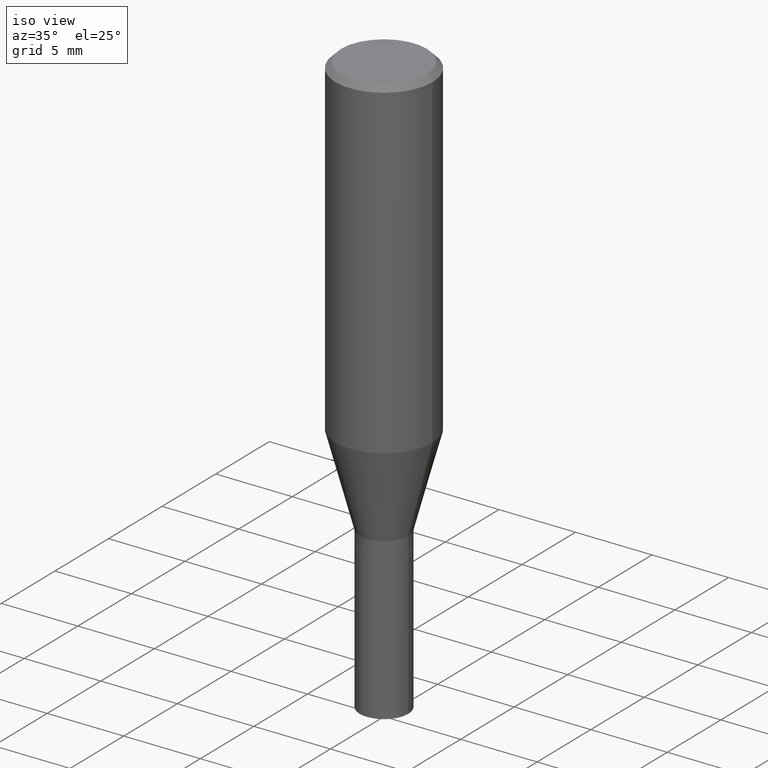
[diagram: clean part render]
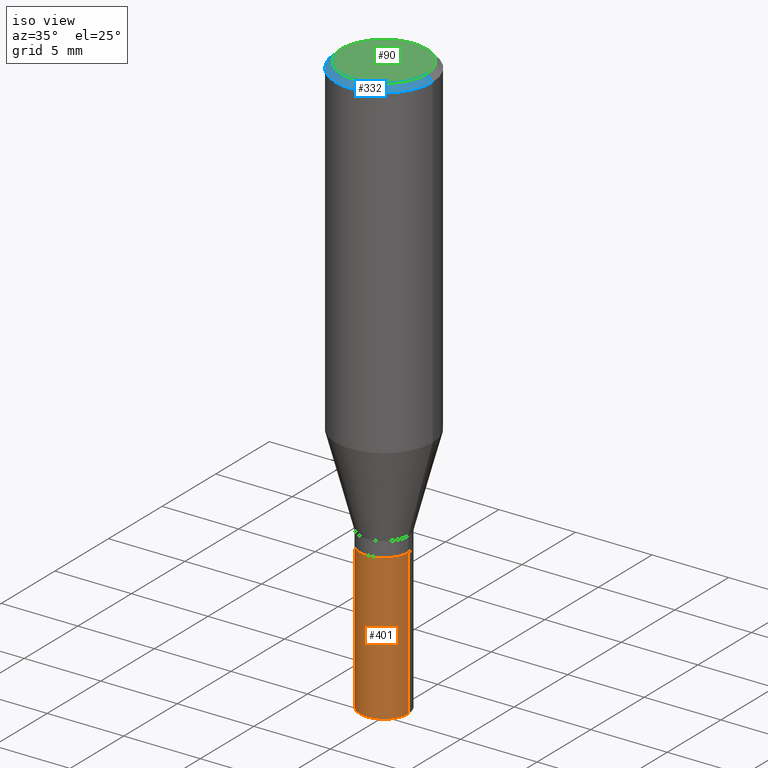
[diagram: same view with three faces highlighted in distinct colors, each labeled with its STEP entity id]
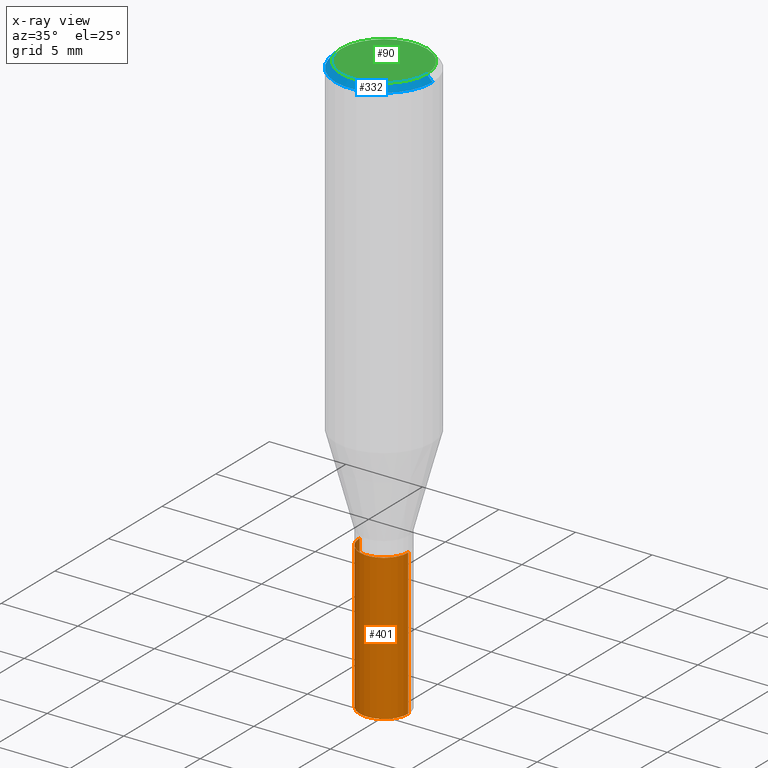
[diagram: x-ray of the same camera — body ghosted, the three highlighted faces saturated]
A machine part, iso view with three faces highlighted in distinct colors.
The next image is the same camera in x-ray (body ghosted, the three faces saturated) — at least one of them is partly hidden behind the body in this view.
Their STEP definitions:

[orange] entity #401 — the highlighted cylindrical surface (edge-blend (fillet) strip) has radius 1.5875 mm, axis along (-0, 0, 1).
#21 = EDGE_CURVE ( 'NONE', #188, #260, #208, .T. ) ;
#22 = VECTOR ( 'NONE', #247, 39.37007874015748143 ) ;
#31 = ORIENTED_EDGE ( 'NONE', *, *, #227, .T. ) ;
#33 = AXIS2_PLACEMENT_3D ( 'NONE', #87, #50, #454 ) ;
#34 = EDGE_LOOP ( 'NONE', ( #191, #408, #31, #178 ) ) ;
#48 = LINE ( 'NONE', #89, #73 ) ;
#50 = DIRECTION ( 'NONE',  ( -2.445468806185136597E-29, 3.491481338843145583E-15, 1.000000000000000000 ) ) ;
#55 = LINE ( 'NONE', #291, #22 ) ;
#73 = VECTOR ( 'NONE', #238, 39.37007874015748143 ) ;
#75 = CARTESIAN_POINT ( 'NONE',  ( 0.06250000000000000000, -4.364351673553930894E-15, -1.125000000000000222 ) ) ;
#87 = CARTESIAN_POINT ( 'NONE',  ( 2.751152406958279232E-29, -3.927916506198539224E-15, -1.125000000000000222 ) ) ;
#89 = CARTESIAN_POINT ( 'NONE',  ( 0.06250000000000000000, -4.364351673553916694E-16, 3.047610484872459871E-30 ) ) ;
#98 = CARTESIAN_POINT ( 'NONE',  ( 3.668203209277704895E-29, -5.237222008264718177E-15, -1.500000000000000222 ) ) ;
#105 = DIRECTION ( 'NONE',  ( -2.445468806185136597E-29, 3.491481338843145583E-15, 1.000000000000000000 ) ) ;
#121 = CIRCLE ( 'NONE', #33, 0.06250000000000000000 ) ;
#156 = FACE_OUTER_BOUND ( 'NONE', #34, .T. ) ;
#160 = CARTESIAN_POINT ( 'NONE',  ( 0.000000000000000000, 0.000000000000000000, 0.000000000000000000 ) ) ;
#162 = AXIS2_PLACEMENT_3D ( 'NONE', #160, #399, #460 ) ;
#178 = ORIENTED_EDGE ( 'NONE', *, *, #244, .F. ) ;
#186 = DIRECTION ( 'NONE',  ( 1.000000000000000000, -6.982962677686262766E-15, 0.000000000000000000 ) ) ;
#188 = VERTEX_POINT ( 'NONE', #195 ) ;
#191 = ORIENTED_EDGE ( 'NONE', *, *, #432, .F. ) ;
#195 = CARTESIAN_POINT ( 'NONE',  ( -0.06250000000000000000, -4.138480047381566479E-15, -1.500000000000000222 ) ) ;
#208 = CIRCLE ( 'NONE', #289, 0.06250000000000000000 ) ;
#212 = VERTEX_POINT ( 'NONE', #459 ) ;
#227 = EDGE_CURVE ( 'NONE', #260, #463, #48, .T. ) ;
#238 = DIRECTION ( 'NONE',  ( -2.445468806185136877E-29, 3.491481338843145188E-15, 1.000000000000000000 ) ) ;
#244 = EDGE_CURVE ( 'NONE', #212, #463, #121, .T. ) ;
#247 = DIRECTION ( 'NONE',  ( -2.445468806185136877E-29, 3.491481338843145188E-15, 1.000000000000000000 ) ) ;
#260 = VERTEX_POINT ( 'NONE', #393 ) ;
#281 = CYLINDRICAL_SURFACE ( 'NONE', #162, 0.06250000000000000000 ) ;
#289 = AXIS2_PLACEMENT_3D ( 'NONE', #98, #105, #186 ) ;
#291 = CARTESIAN_POINT ( 'NONE',  ( -0.06250000000000000000, 4.440892098500626162E-16, -3.074334431409316114E-30 ) ) ;
#393 = CARTESIAN_POINT ( 'NONE',  ( 0.06250000000000000000, -5.673657175620109846E-15, -1.500000000000000222 ) ) ;
#399 = DIRECTION ( 'NONE',  ( -2.445468806185136597E-29, 3.491481338843145583E-15, 1.000000000000000000 ) ) ;
#401 = ADVANCED_FACE ( 'NONE', ( #156 ), #281, .T. ) ;
#408 = ORIENTED_EDGE ( 'NONE', *, *, #21, .T. ) ;
#432 = EDGE_CURVE ( 'NONE', #188, #212, #55, .T. ) ;
#454 = DIRECTION ( 'NONE',  ( 1.000000000000000000, -6.982962677686262766E-15, 0.000000000000000000 ) ) ;
#459 = CARTESIAN_POINT ( 'NONE',  ( -0.06250000000000000000, -4.138480047381566479E-15, -1.125000000000000222 ) ) ;
#460 = DIRECTION ( 'NONE',  ( 1.000000000000000000, -6.982962677686266711E-15, 4.876176775795935793E-29 ) ) ;
#463 = VERTEX_POINT ( 'NONE', #75 ) ;

[blue] entity #332 — the highlighted conical surface has half-angle 45 deg.
#5 = ORIENTED_EDGE ( 'NONE', *, *, #270, .F. ) ;
#8 = ORIENTED_EDGE ( 'NONE', *, *, #135, .T. ) ;
#29 = AXIS2_PLACEMENT_3D ( 'NONE', #199, #161, #240 ) ;
#44 = CONICAL_SURFACE ( 'NONE', #427, 0.1250000000000000000, 0.7853981633974483900 ) ;
#79 = CARTESIAN_POINT ( 'NONE',  ( 3.668203209277705088E-31, -5.237222008264718399E-17, -0.01499999999999999944 ) ) ;
#97 = CARTESIAN_POINT ( 'NONE',  ( -0.1250000000000000000, -6.266825026379897209E-16, -0.01499999999999999944 ) ) ;
#103 = DIRECTION ( 'NONE',  ( 1.000000000000000000, -6.982962677686266711E-15, 0.000000000000000000 ) ) ;
#119 = DIRECTION ( 'NONE',  ( 0.7071067811865475727, -7.319954787623256045E-15, -0.7071067811865474617 ) ) ;
#135 = EDGE_CURVE ( 'NONE', #136, #404, #312, .T. ) ;
#136 = VERTEX_POINT ( 'NONE', #141 ) ;
#141 = CARTESIAN_POINT ( 'NONE',  ( -0.1100000000000000006, 7.943120045868128186E-16, -7.674416657726847932E-18 ) ) ;
#158 = CIRCLE ( 'NONE', #290, 0.1250000000000000000 ) ;
#161 = DIRECTION ( 'NONE',  ( -2.445468806185136597E-29, 3.491481338843145583E-15, 1.000000000000000000 ) ) ;
#172 = EDGE_CURVE ( 'NONE', #342, #448, #237, .T. ) ;
#177 = VECTOR ( 'NONE', #119, 39.37007874015748143 ) ;
#199 = CARTESIAN_POINT ( 'NONE',  ( 1.876754654212523840E-46, -2.679508254694119990E-32, -7.674416657721384454E-18 ) ) ;
#211 = DIRECTION ( 'NONE',  ( -0.7071067811865475727, 2.468850131082257455E-15, -0.7071067811865474617 ) ) ;
#234 = CARTESIAN_POINT ( 'NONE',  ( 0.1100000000000000006, -8.322946247794786836E-16, -7.674416657715788472E-18 ) ) ;
#237 = LINE ( 'NONE', #391, #177 ) ;
#240 = DIRECTION ( 'NONE',  ( 1.000000000000000000, -6.982962677686266711E-15, 4.876001053725558154E-29 ) ) ;
#248 = CARTESIAN_POINT ( 'NONE',  ( 0.1250000000000000000, -9.252425547934304180E-16, -0.01499999999999999944 ) ) ;
#249 = ORIENTED_EDGE ( 'NONE', *, *, #172, .F. ) ;
#270 = EDGE_CURVE ( 'NONE', #136, #342, #285, .T. ) ;
#271 = DIRECTION ( 'NONE',  ( -1.000000000000000000, 6.982962677686266711E-15, 0.000000000000000000 ) ) ;
#285 = CIRCLE ( 'NONE', #29, 0.1100000000000000006 ) ;
#290 = AXIS2_PLACEMENT_3D ( 'NONE', #79, #438, #103 ) ;
#305 = FACE_OUTER_BOUND ( 'NONE', #352, .T. ) ;
#310 = DIRECTION ( 'NONE',  ( 2.445468806185136597E-29, -3.491481338843145583E-15, -1.000000000000000000 ) ) ;
#312 = LINE ( 'NONE', #420, #318 ) ;
#318 = VECTOR ( 'NONE', #211, 39.37007874015748143 ) ;
#323 = EDGE_CURVE ( 'NONE', #404, #448, #158, .T. ) ;
#332 = ADVANCED_FACE ( 'NONE', ( #305 ), #44, .T. ) ;
#342 = VERTEX_POINT ( 'NONE', #234 ) ;
#352 = EDGE_LOOP ( 'NONE', ( #249, #5, #8, #434 ) ) ;
#391 = CARTESIAN_POINT ( 'NONE',  ( 0.1250000000000000000, -9.099344698040885245E-16, -0.01499999999999999944 ) ) ;
#404 = VERTEX_POINT ( 'NONE', #97 ) ;
#407 = CARTESIAN_POINT ( 'NONE',  ( 3.668203209277705088E-31, -5.237222008264718399E-17, -0.01499999999999999944 ) ) ;
#420 = CARTESIAN_POINT ( 'NONE',  ( -0.1250000000000000000, 8.204981146281362596E-16, -0.01499999999999999944 ) ) ;
#427 = AXIS2_PLACEMENT_3D ( 'NONE', #407, #310, #271 ) ;
#434 = ORIENTED_EDGE ( 'NONE', *, *, #323, .T. ) ;
#438 = DIRECTION ( 'NONE',  ( -2.445468806185136597E-29, 3.491481338843145583E-15, 1.000000000000000000 ) ) ;
#448 = VERTEX_POINT ( 'NONE', #248 ) ;

[green] entity #90 — the highlighted planar face has unit normal (0, -0, -1).
#29 = AXIS2_PLACEMENT_3D ( 'NONE', #199, #161, #240 ) ;
#83 = FACE_OUTER_BOUND ( 'NONE', #379, .T. ) ;
#90 = ADVANCED_FACE ( 'NONE', ( #83 ), #232, .F. ) ;
#107 = ORIENTED_EDGE ( 'NONE', *, *, #270, .T. ) ;
#120 = EDGE_CURVE ( 'NONE', #342, #136, #190, .T. ) ;
#136 = VERTEX_POINT ( 'NONE', #141 ) ;
#141 = CARTESIAN_POINT ( 'NONE',  ( -0.1100000000000000006, 7.943120045868128186E-16, -7.674416657726847932E-18 ) ) ;
#161 = DIRECTION ( 'NONE',  ( -2.445468806185136597E-29, 3.491481338843145583E-15, 1.000000000000000000 ) ) ;
#179 = DIRECTION ( 'NONE',  ( -1.000000000000000000, 6.982962677686265922E-15, -4.876176775795935793E-29 ) ) ;
#190 = CIRCLE ( 'NONE', #278, 0.1100000000000000006 ) ;
#199 = CARTESIAN_POINT ( 'NONE',  ( 1.876754654212523840E-46, -2.679508254694119990E-32, -7.674416657721384454E-18 ) ) ;
#204 = CARTESIAN_POINT ( 'NONE',  ( 7.681258945454893776E-16, 0.1100000000000000006, -3.879001556016067477E-16 ) ) ;
#232 = PLANE ( 'NONE',  #394 ) ;
#234 = CARTESIAN_POINT ( 'NONE',  ( 0.1100000000000000006, -8.322946247794786836E-16, -7.674416657715788472E-18 ) ) ;
#240 = DIRECTION ( 'NONE',  ( 1.000000000000000000, -6.982962677686266711E-15, 4.876001053725558154E-29 ) ) ;
#253 = DIRECTION ( 'NONE',  ( 2.438088387897960049E-29, -3.491481338843145188E-15, -1.000000000000000000 ) ) ;
#266 = CARTESIAN_POINT ( 'NONE',  ( 1.876754654212523840E-46, -2.679508254694119990E-32, -7.674416657721384454E-18 ) ) ;
#270 = EDGE_CURVE ( 'NONE', #136, #342, #285, .T. ) ;
#278 = AXIS2_PLACEMENT_3D ( 'NONE', #266, #441, #409 ) ;
#285 = CIRCLE ( 'NONE', #29, 0.1100000000000000006 ) ;
#342 = VERTEX_POINT ( 'NONE', #234 ) ;
#379 = EDGE_LOOP ( 'NONE', ( #107, #444 ) ) ;
#394 = AXIS2_PLACEMENT_3D ( 'NONE', #204, #253, #179 ) ;
#409 = DIRECTION ( 'NONE',  ( 1.000000000000000000, -6.982962677686266711E-15, 4.876001053725558154E-29 ) ) ;
#441 = DIRECTION ( 'NONE',  ( -2.445468806185136597E-29, 3.491481338843145583E-15, 1.000000000000000000 ) ) ;
#444 = ORIENTED_EDGE ( 'NONE', *, *, #120, .T. ) ;